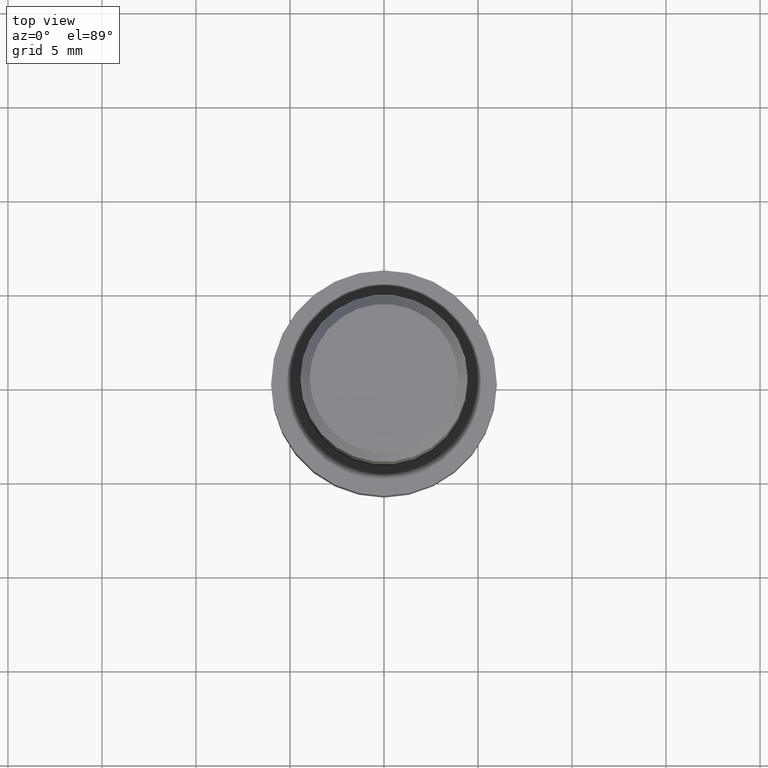
[diagram: clean part render]
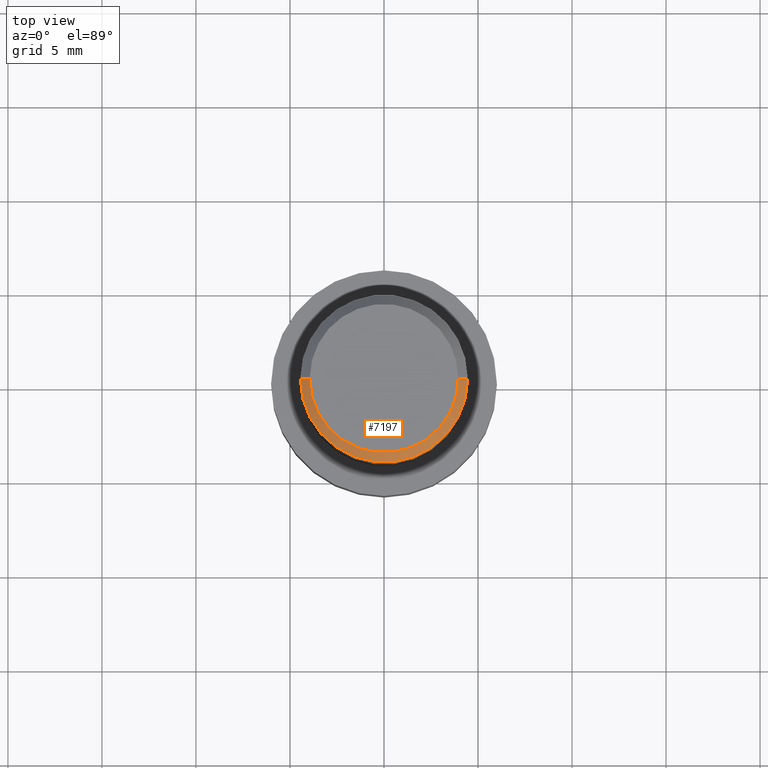
[diagram: same view with one face highlighted and labeled with its STEP entity id]
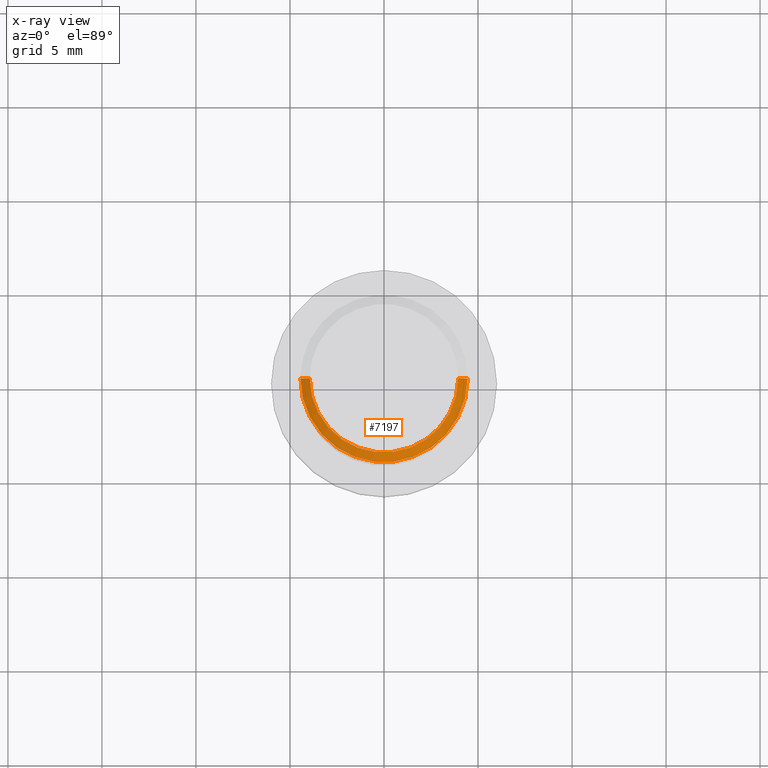
[diagram: x-ray of the same camera — body ghosted, the highlighted face saturated]
A machine part, top view. The second image highlights one B-rep face of the part: STEP entity #7197.
The next image is the same camera in x-ray: the body ghosted, the highlighted face saturated — about 0% of this face is hidden behind the body in this view.
In plain terms, the highlighted conical surface has half-angle 45 deg.
Its self-contained STEP definition (entity closure, byte-faithful):
#259 = VERTEX_POINT ( 'NONE', #1716 ) ;
#735 = CARTESIAN_POINT ( 'NONE',  ( 4.449999999999999289, -1.598164072887296760E-15, 17.00000000000000000 ) ) ;
#1363 = ORIENTED_EDGE ( 'NONE', *, *, #11812, .F. ) ;
#1605 = VERTEX_POINT ( 'NONE', #11848 ) ;
#1618 = ORIENTED_EDGE ( 'NONE', *, *, #4194, .F. ) ;
#1707 = CIRCLE ( 'NONE', #10213, 4.449999999999999289 ) ;
#1716 = CARTESIAN_POINT ( 'NONE',  ( -3.949999999999998845, -2.143131898507868643E-15, 17.50000000000000000 ) ) ;
#2132 = CARTESIAN_POINT ( 'NONE',  ( 0.000000000000000000, -2.143131898507868643E-15, 17.00000000000000000 ) ) ;
#2479 = EDGE_CURVE ( 'NONE', #259, #8472, #5512, .T. ) ;
#3187 = DIRECTION ( 'NONE',  ( 1.000000000000000000, 0.000000000000000000, 0.000000000000000000 ) ) ;
#3223 = DIRECTION ( 'NONE',  ( -0.000000000000000000, -0.000000000000000000, -1.000000000000000000 ) ) ;
#4194 = EDGE_CURVE ( 'NONE', #10800, #1605, #6531, .T. ) ;
#5248 = EDGE_CURVE ( 'NONE', #1605, #8472, #1707, .T. ) ;
#5386 = DIRECTION ( 'NONE',  ( 0.000000000000000000, 0.000000000000000000, 1.000000000000000000 ) ) ;
#5512 = LINE ( 'NONE', #12157, #9064 ) ;
#5576 = ORIENTED_EDGE ( 'NONE', *, *, #2479, .T. ) ;
#6126 = FACE_OUTER_BOUND ( 'NONE', #6953, .T. ) ;
#6531 = LINE ( 'NONE', #735, #8522 ) ;
#6953 = EDGE_LOOP ( 'NONE', ( #1618, #1363, #5576, #11033 ) ) ;
#7197 = ADVANCED_FACE ( 'NONE', ( #6126 ), #8335, .T. ) ;
#7371 = DIRECTION ( 'NONE',  ( -1.000000000000000000, 0.000000000000000000, 0.000000000000000000 ) ) ;
#8335 = CONICAL_SURFACE ( 'NONE', #8682, 4.449999999999999289, 0.7853981633974482790 ) ;
#8402 = DIRECTION ( 'NONE',  ( -0.000000000000000000, -0.000000000000000000, -1.000000000000000000 ) ) ;
#8472 = VERTEX_POINT ( 'NONE', #12406 ) ;
#8522 = VECTOR ( 'NONE', #10438, 1000.000000000000114 ) ;
#8682 = AXIS2_PLACEMENT_3D ( 'NONE', #12744, #8402, #7371 ) ;
#9064 = VECTOR ( 'NONE', #11971, 1000.000000000000114 ) ;
#9672 = DIRECTION ( 'NONE',  ( 1.000000000000000000, 0.000000000000000000, 0.000000000000000000 ) ) ;
#10213 = AXIS2_PLACEMENT_3D ( 'NONE', #2132, #3223, #9672 ) ;
#10438 = DIRECTION ( 'NONE',  ( 0.7071067811865474617, 8.659560562354932858E-17, -0.7071067811865474617 ) ) ;
#10800 = VERTEX_POINT ( 'NONE', #11149 ) ;
#10953 = CIRCLE ( 'NONE', #12397, 3.949999999999998845 ) ;
#11033 = ORIENTED_EDGE ( 'NONE', *, *, #5248, .F. ) ;
#11149 = CARTESIAN_POINT ( 'NONE',  ( 3.949999999999998845, -1.628780242865980547E-15, 17.50000000000000000 ) ) ;
#11812 = EDGE_CURVE ( 'NONE', #259, #10800, #10953, .T. ) ;
#11848 = CARTESIAN_POINT ( 'NONE',  ( 4.449999999999999289, -1.598164072887296760E-15, 17.00000000000000000 ) ) ;
#11971 = DIRECTION ( 'NONE',  ( -0.7071067811865474617, 0.000000000000000000, -0.7071067811865474617 ) ) ;
#12157 = CARTESIAN_POINT ( 'NONE',  ( -4.449999999999999289, -2.143131898507868643E-15, 17.00000000000000000 ) ) ;
#12397 = AXIS2_PLACEMENT_3D ( 'NONE', #13986, #5386, #3187 ) ;
#12406 = CARTESIAN_POINT ( 'NONE',  ( -4.449999999999999289, -2.143131898507868643E-15, 17.00000000000000000 ) ) ;
#12744 = CARTESIAN_POINT ( 'NONE',  ( 0.000000000000000000, -2.143131898507868643E-15, 17.00000000000000000 ) ) ;
#13986 = CARTESIAN_POINT ( 'NONE',  ( 0.000000000000000000, -2.143131898507868643E-15, 17.50000000000000000 ) ) ;